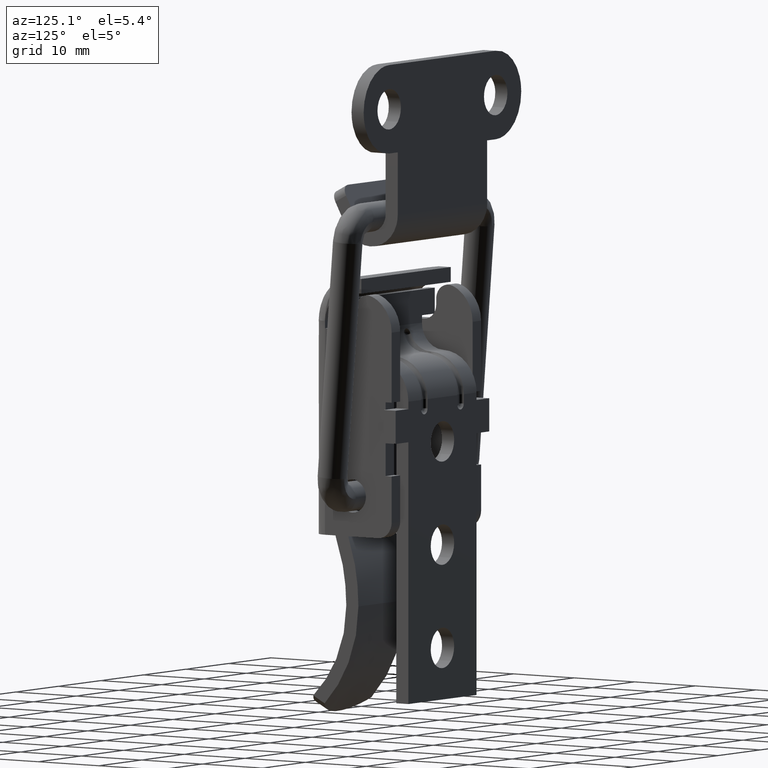
[diagram: clean part render]
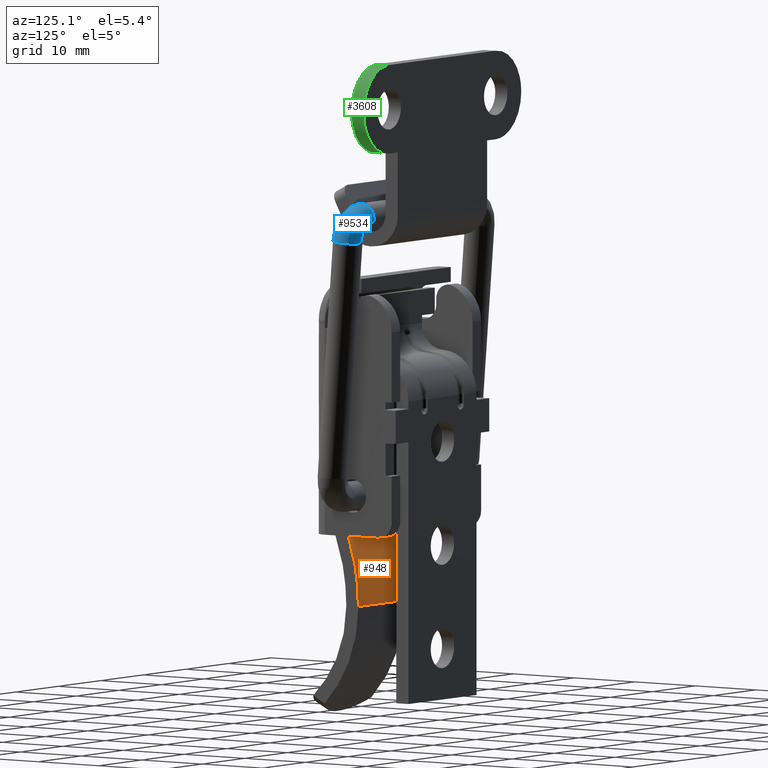
[diagram: same view with three faces highlighted in distinct colors, each labeled with its STEP entity id]
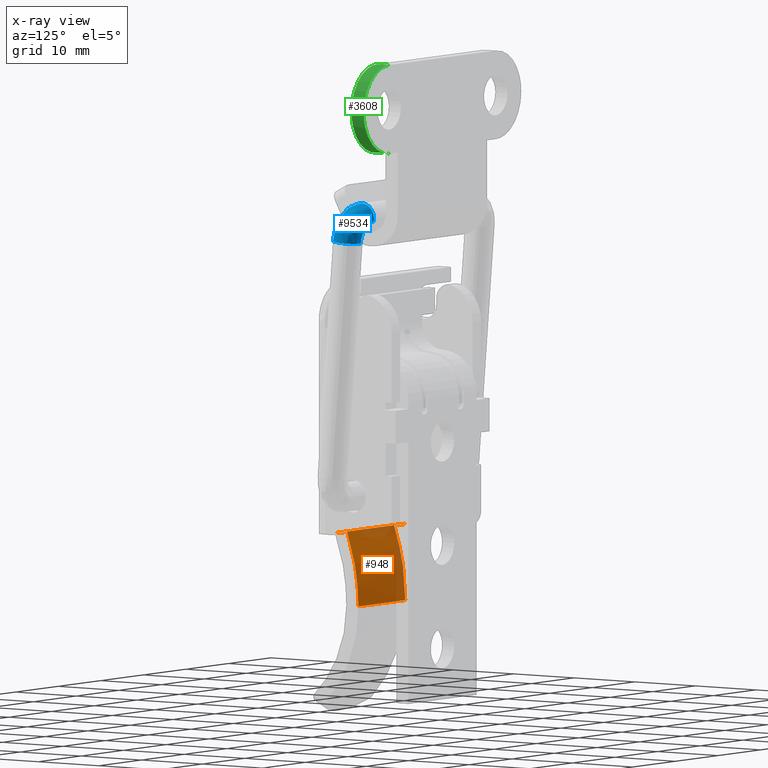
[diagram: x-ray of the same camera — body ghosted, the three highlighted faces saturated]
A machine part, auxiliary view with three faces highlighted in distinct colors.
The next image is the same camera in x-ray (body ghosted, the three faces saturated) — at least one of them is partly hidden behind the body in this view.
Their STEP definitions:

[orange] entity #948 — the highlighted face is a freeform B-spline surface patch.
#536=CARTESIAN_POINT('',(5.500000000000000,-4.346606338755945,-5.500000000000000));
#537=VERTEX_POINT('',#536);
#574=CARTESIAN_POINT('',(5.500000000000000,-2.499999999999915,-15.500000000000000));
#575=VERTEX_POINT('',#574);
#587=CARTESIAN_POINT('',(5.500000000000000,-4.346606338755945,-5.500000000000000));
#588=CARTESIAN_POINT('',(5.499999999999994,-3.756784696817081,-7.042107048097098));
#589=CARTESIAN_POINT('',(5.500000000000017,-2.822113269814003,-10.333919449175839));
#590=CARTESIAN_POINT('',(5.499999999999986,-2.499772219202408,-13.742425566897150));
#591=CARTESIAN_POINT('',(5.500000000000000,-2.499999999999915,-15.500000000000000));
#592=B_SPLINE_CURVE_WITH_KNOTS('',3,(#587,#588,#589,#590,#591),.UNSPECIFIED.,.F.,.U.,(4,1,4),(2.137188E-009,4.953135184121796,10.225816070062340),.UNSPECIFIED.);
#593=EDGE_CURVE('',#537,#575,#592,.T.);
#615=CARTESIAN_POINT('',(-5.500000000000000,-4.346606338755935,-5.500000000000000));
#616=VERTEX_POINT('',#615);
#622=CARTESIAN_POINT('',(-5.500000000000000,-2.499999999999915,-15.500000000000000));
#623=VERTEX_POINT('',#622);
#624=CARTESIAN_POINT('',(-5.500000000000000,-2.499999999999915,-15.500000000000000));
#625=CARTESIAN_POINT('',(-5.500000000000003,-2.499975960879610,-14.434810754267250));
#626=CARTESIAN_POINT('',(-5.500000000000002,-2.624742881646974,-12.251179675901909));
#627=CARTESIAN_POINT('',(-5.499999999999981,-3.216052975655884,-8.888043038366162));
#628=CARTESIAN_POINT('',(-5.500000000000021,-3.909078111999518,-6.644165944255310));
#629=CARTESIAN_POINT('',(-5.500000000000000,-4.346606338755935,-5.500000000000000));
#630=B_SPLINE_CURVE_WITH_KNOTS('',3,(#624,#625,#626,#627,#628,#629),.UNSPECIFIED.,.F.,.U.,(4,1,1,4),(2.137478E-009,3.195569477111270,6.550912951163868,10.225816070062340),.UNSPECIFIED.);
#631=EDGE_CURVE('',#623,#616,#630,.T.);
#766=CARTESIAN_POINT('',(-8.0,-4.346606338755935,-5.500000000000000));
#767=VERTEX_POINT('',#766);
#768=CARTESIAN_POINT('',(-8.0,-4.366666666666665,-5.447692360015530));
#769=VERTEX_POINT('',#768);
#770=CARTESIAN_POINT('',(-8.0,-4.346606338755935,-5.500000000000000));
#771=CARTESIAN_POINT('',(-8.0,-4.366666666666665,-5.447692360015530));
#772=QUASI_UNIFORM_CURVE('',1,(#770,#771),.UNSPECIFIED.,.F.,.U.);
#773=EDGE_CURVE('',#767,#769,#772,.T.);
#804=CARTESIAN_POINT('',(7.999999999999900,-4.346606338755935,-5.500000000000000));
#805=VERTEX_POINT('',#804);
#813=CARTESIAN_POINT('',(7.999999999999900,-4.366666666666665,-5.447692360015530));
#814=VERTEX_POINT('',#813);
#815=CARTESIAN_POINT('',(7.999999999999900,-4.346606338755935,-5.500000000000000));
#816=CARTESIAN_POINT('',(7.999999999999900,-4.366666666666665,-5.447692360015530));
#817=QUASI_UNIFORM_CURVE('',1,(#815,#816),.UNSPECIFIED.,.F.,.U.);
#818=EDGE_CURVE('',#805,#814,#817,.T.);
#904=CARTESIAN_POINT('',(7.999999999999900,-4.366666666666665,-5.447692360015530));
#905=CARTESIAN_POINT('',(-8.0,-4.366666666666665,-5.447692360015530));
#906=QUASI_UNIFORM_CURVE('',1,(#904,#905),.UNSPECIFIED.,.F.,.U.);
#907=EDGE_CURVE('',#814,#769,#906,.T.);
#912=CARTESIAN_POINT('',(8.399999999999899,-2.504627173452964,-16.009018960974146));
#913=CARTESIAN_POINT('',(-8.410000000000002,-2.504627173452964,-16.009018960974146));
#914=CARTESIAN_POINT('',(8.399999999999899,-2.400475146343137,-10.280794566345985));
#915=CARTESIAN_POINT('',(-8.409999999999998,-2.400475146343137,-10.280794566345985));
#916=CARTESIAN_POINT('',(8.399999999999899,-4.554637481262168,-4.972029456192746));
#917=CARTESIAN_POINT('',(-8.410000000000000,-4.554637481262168,-4.972029456192746));
#925=(BOUNDED_SURFACE()B_SPLINE_SURFACE(1,2,((#912,#914,#916),(#913,#915,#917)),.UNSPECIFIED.,.F.,.F.,.U.)B_SPLINE_SURFACE_WITH_KNOTS((2,2),(3,3),(0.0,16.809999999999899),(0.0,11.340841047530841),.UNSPECIFIED.)GEOMETRIC_REPRESENTATION_ITEM()RATIONAL_B_SPLINE_SURFACE(((0.998920453607400,0.976221244705207,0.993980152992177),(0.998920453607400,0.976221244705207,0.993980152992177)))REPRESENTATION_ITEM('')SURFACE());
#926=CARTESIAN_POINT('',(7.999999999999900,-4.346606338755935,-5.500000000000000));
#927=CARTESIAN_POINT('',(5.500000000000000,-4.346606338755945,-5.500000000000000));
#928=QUASI_UNIFORM_CURVE('',1,(#926,#927),.UNSPECIFIED.,.F.,.U.);
#929=EDGE_CURVE('',#805,#537,#928,.T.);
#930=ORIENTED_EDGE('',*,*,#929,.T.);
#931=ORIENTED_EDGE('',*,*,#593,.T.);
#932=CARTESIAN_POINT('',(5.500000000000000,-2.499999999999915,-15.500000000000000));
#933=CARTESIAN_POINT('',(-5.500000000000000,-2.499999999999915,-15.500000000000000));
#934=QUASI_UNIFORM_CURVE('',1,(#932,#933),.UNSPECIFIED.,.F.,.U.);
#935=EDGE_CURVE('',#575,#623,#934,.T.);
#936=ORIENTED_EDGE('',*,*,#935,.T.);
#937=ORIENTED_EDGE('',*,*,#631,.T.);
#938=CARTESIAN_POINT('',(-5.500000000000000,-4.346606338755935,-5.500000000000000));
#939=CARTESIAN_POINT('',(-8.0,-4.346606338755935,-5.500000000000000));
#940=QUASI_UNIFORM_CURVE('',1,(#938,#939),.UNSPECIFIED.,.F.,.U.);
#941=EDGE_CURVE('',#616,#767,#940,.T.);
#942=ORIENTED_EDGE('',*,*,#941,.T.);
#943=ORIENTED_EDGE('',*,*,#773,.T.);
#944=ORIENTED_EDGE('',*,*,#907,.F.);
#945=ORIENTED_EDGE('',*,*,#818,.F.);
#946=EDGE_LOOP('',(#930,#931,#936,#937,#942,#943,#944,#945));
#947=FACE_OUTER_BOUND('',#946,.T.);
#948=ADVANCED_FACE('',(#947),#925,.T.);

[blue] entity #9534 — the highlighted face is a freeform B-spline surface patch.
#8687=CARTESIAN_POINT('',(12.500000000311671,-2.0,38.118237105345969));
#8688=VERTEX_POINT('',#8687);
#8696=CARTESIAN_POINT('',(12.499999999998719,-9.284338E-017,40.118237105091850));
#8697=VERTEX_POINT('',#8696);
#8698=CARTESIAN_POINT('',(12.499999999998719,-9.284338E-017,40.118237105091850));
#8699=CARTESIAN_POINT('',(12.499999999998730,-0.163619527955219,40.118255672290132));
#8700=CARTESIAN_POINT('',(12.500000000005960,-0.539988145565445,40.071883038153530));
#8701=CARTESIAN_POINT('',(12.500000000037680,-1.012133107447806,39.869504832381999));
#8702=CARTESIAN_POINT('',(12.500000000083521,-1.387952920475096,39.576047858994933));
#8703=CARTESIAN_POINT('',(12.500000000138080,-1.688747822335934,39.227525214604789));
#8704=CARTESIAN_POINT('',(12.500000000214470,-1.934099733676171,38.739955183495262));
#8705=CARTESIAN_POINT('',(12.500000000278330,-2.000125464563861,38.330961786095067));
#8706=CARTESIAN_POINT('',(12.500000000311671,-2.0,38.118237105345969));
#8707=B_SPLINE_CURVE_WITH_KNOTS('',3,(#8698,#8699,#8700,#8701,#8702,#8703,#8704,#8705,#8706),.UNSPECIFIED.,.F.,.U.,(4,1,1,1,1,1,4),(0.000000080942778,0.490885984309863,1.129050752807840,1.521755501513646,1.914436206712832,2.503524089595596,3.141671488589724),.UNSPECIFIED.);
#8708=EDGE_CURVE('',#8697,#8688,#8707,.T.);
#8710=CARTESIAN_POINT('',(12.500000000094889,1.986623277558564,37.887308646337907));
#8711=VERTEX_POINT('',#8710);
#8712=CARTESIAN_POINT('',(12.500000000094889,1.986623277558564,37.887308646337907));
#8713=CARTESIAN_POINT('',(12.500000000078810,2.013132437964530,38.114166440935790));
#8714=CARTESIAN_POINT('',(12.500000000055200,1.993115185287151,38.470108282693452));
#8715=CARTESIAN_POINT('',(12.500000000027800,1.838076683342367,38.939169854756493));
#8716=CARTESIAN_POINT('',(12.500000000008569,1.628639985396933,39.307796973621322));
#8717=CARTESIAN_POINT('',(12.499999999992481,1.282468822075968,39.686501995109573));
#8718=CARTESIAN_POINT('',(12.499999999984800,0.737692798708373,40.023100710550892));
#8719=CARTESIAN_POINT('',(12.499999999991410,0.263549913081528,40.118514935326679));
#8720=CARTESIAN_POINT('',(12.499999999998719,-9.284338E-017,40.118237105091850));
#8721=B_SPLINE_CURVE_WITH_KNOTS('',3,(#8712,#8713,#8714,#8715,#8716,#8717,#8718,#8719,#8720),.UNSPECIFIED.,.F.,.U.,(4,1,1,1,1,1,4),(0.000000038434457,0.685160763930145,1.054113044976634,1.475750169876393,1.950086034219020,2.582559039412395,3.373134908436910),.UNSPECIFIED.);
#8722=EDGE_CURVE('',#8711,#8697,#8721,.T.);
#8857=CARTESIAN_POINT('',(17.500000000000000,-1.942300E-028,35.118237105093101));
#8858=VERTEX_POINT('',#8857);
#8859=CARTESIAN_POINT('',(17.120705321740040,-1.171884917593300,35.118236180189093));
#8860=VERTEX_POINT('',#8859);
#8861=CARTESIAN_POINT('',(17.500000000000000,-1.942300E-028,35.118237105093101));
#8862=CARTESIAN_POINT('',(17.500021963496959,-0.156509315208222,35.118237011785922));
#8863=CARTESIAN_POINT('',(17.450800509534290,-0.573877410649099,35.118236733577270));
#8864=CARTESIAN_POINT('',(17.273829669203970,-0.960637630817571,35.118236397448207));
#8865=CARTESIAN_POINT('',(17.120705321740040,-1.171884917593300,35.118236180189093));
#8866=B_SPLINE_CURVE_WITH_KNOTS('',3,(#8861,#8862,#8863,#8864,#8865),.UNSPECIFIED.,.F.,.U.,(4,1,4),(0.000000021799349,0.469539566915238,1.252105149662528),.UNSPECIFIED.);
#8867=EDGE_CURVE('',#8858,#8860,#8866,.T.);
#8897=CARTESIAN_POINT('',(16.851180359195229,1.474554724967855,35.118237105177712));
#8898=VERTEX_POINT('',#8897);
#8904=CARTESIAN_POINT('',(16.851180359195229,1.474554724967855,35.118237105177712));
#8905=CARTESIAN_POINT('',(17.016837456681561,1.322956980162625,35.118237104990392));
#8906=CARTESIAN_POINT('',(17.242347596948470,1.032357326203498,35.118237104797352));
#8907=CARTESIAN_POINT('',(17.452871388927718,0.518107547798297,35.118237104796442));
#8908=CARTESIAN_POINT('',(17.500074061058729,0.189994441275751,35.118237104952861));
#8909=CARTESIAN_POINT('',(17.500000000000000,-1.942300E-028,35.118237105093101));
#8910=B_SPLINE_CURVE_WITH_KNOTS('',3,(#8904,#8905,#8906,#8907,#8908,#8909),.UNSPECIFIED.,.F.,.U.,(4,1,1,4),(0.000000028464442,0.673614468307223,1.088127557305217,1.658109222579091),.UNSPECIFIED.);
#8911=EDGE_CURVE('',#8898,#8858,#8910,.T.);
#8942=CARTESIAN_POINT('',(15.499999999998099,-2.0,35.118234720085141));
#8943=VERTEX_POINT('',#8942);
#8944=CARTESIAN_POINT('',(17.120705321740040,-1.171884917593300,35.118236180189093));
#8945=CARTESIAN_POINT('',(16.993927518134669,-1.347416514302190,35.118235999937319));
#8946=CARTESIAN_POINT('',(16.753358902989952,-1.586257975150073,35.118235714089572));
#8947=CARTESIAN_POINT('',(16.335980940963530,-1.831573871938577,35.118235318959726));
#8948=CARTESIAN_POINT('',(15.942847411959111,-1.967170654665177,35.118235003705408));
#8949=CARTESIAN_POINT('',(15.647619413729499,-2.000024867019609,35.118234808087827));
#8950=CARTESIAN_POINT('',(15.499999999998099,-2.0,35.118234720085141));
#8951=B_SPLINE_CURVE_WITH_KNOTS('',3,(#8944,#8945,#8946,#8947,#8948,#8949,#8950),.UNSPECIFIED.,.F.,.U.,(4,1,1,1,4),(0.000000050844252,0.649531440701733,1.003804955805120,1.446667566734450,1.889524623268047),.UNSPECIFIED.);
#8952=EDGE_CURVE('',#8860,#8943,#8951,.T.);
#8968=CARTESIAN_POINT('',(15.269071538442279,1.986623277232646,35.118237107656363));
#8969=VERTEX_POINT('',#8968);
#8982=CARTESIAN_POINT('',(15.269071538442279,1.986623277232646,35.118237107656363));
#8983=CARTESIAN_POINT('',(15.428774283460120,2.005226156688181,35.118237107354339));
#8984=CARTESIAN_POINT('',(15.734668196661531,2.003665775220961,35.118237106803313));
#8985=CARTESIAN_POINT('',(16.294173660870271,1.871198386791942,35.118237105890991));
#8986=CARTESIAN_POINT('',(16.653791667544500,1.655871074536661,35.118237105400297));
#8987=CARTESIAN_POINT('',(16.851180359195229,1.474554724967855,35.118237105177712));
#8988=B_SPLINE_CURVE_WITH_KNOTS('',3,(#8982,#8983,#8984,#8985,#8986,#8987),.UNSPECIFIED.,.F.,.U.,(4,1,1,4),(0.000000018869367,0.482351048068467,0.911107029863148,1.715025770897611),.UNSPECIFIED.);
#8989=EDGE_CURVE('',#8969,#8898,#8988,.T.);
#9467=CARTESIAN_POINT('',(15.231424395150242,1.983013403337755,34.928353627804682));
#9468=CARTESIAN_POINT('',(15.449763529737227,1.983013403337752,38.069105246361147));
#9469=CARTESIAN_POINT('',(12.309093878466195,1.983013403337754,37.849590215571993));
#9470=CARTESIAN_POINT('',(15.246956598849327,1.984823248754010,34.927273858269942));
#9471=CARTESIAN_POINT('',(15.466537315637854,1.984823248754009,38.085885313618611));
#9472=CARTESIAN_POINT('',(12.308008293680336,1.984823248754009,37.865122013911858));
#9473=CARTESIAN_POINT('',(15.377204403289282,1.999999999999998,34.918219276323597));
#9474=CARTESIAN_POINT('',(15.607196608293906,1.999999999999998,38.226597279607674));
#9475=CARTESIAN_POINT('',(12.298904947005958,1.999999999999999,37.995366419146691));
#9476=CARTESIAN_POINT('',(15.492777017106642,2.000000000000000,34.910184885977749));
#9477=CARTESIAN_POINT('',(15.732007634321262,1.999999999999999,38.351455044194687));
#9478=CARTESIAN_POINT('',(12.290827286317787,2.000000000000000,38.110936016751829));
#9479=CARTESIAN_POINT('',(17.487961695177734,2.000000000000000,34.771483406568350));
#9480=CARTESIAN_POINT('',(17.886679390535438,2.000000000000000,40.506933670263237));
#9481=CARTESIAN_POINT('',(12.151378810529652,2.000000000000000,40.106068624525136));
#9482=CARTESIAN_POINT('',(17.487961695177724,4.898425E-016,34.771483406568343));
#9483=CARTESIAN_POINT('',(17.886679390535441,4.898425E-016,40.506933670263244));
#9484=CARTESIAN_POINT('',(12.151378810529655,4.898425E-016,40.106068624525143));
#9485=CARTESIAN_POINT('',(17.487961695177734,-1.999999999999998,34.771483406568350));
#9486=CARTESIAN_POINT('',(17.886679390535438,-1.999999999999998,40.506933670263237));
#9487=CARTESIAN_POINT('',(12.151378810529652,-1.999999999999999,40.106068624525136));
#9488=CARTESIAN_POINT('',(15.478082355072031,-1.999999999999999,34.911206431194103));
#9489=CARTESIAN_POINT('',(15.716138339813799,-2.000000000000000,38.335579807039451));
#9490=CARTESIAN_POINT('',(12.291854333209971,-1.999999999999999,38.096241738218268));
#9491=CARTESIAN_POINT('',(15.463477078630115,-1.999999999999999,34.912221762492472));
#9492=CARTESIAN_POINT('',(15.700365576025575,-2.000000000000000,38.319801136751735));
#9493=CARTESIAN_POINT('',(12.292875132718244,-2.000000000000000,38.081636842944626));
#9501=(BOUNDED_SURFACE()B_SPLINE_SURFACE(2,2,((#9467,#9470,#9473,#9476,#9479,#9482,#9485,#9488,#9491),(#9468,#9471,#9474,#9477,#9480,#9483,#9486,#9489,#9492),(#9469,#9472,#9475,#9478,#9481,#9484,#9487,#9490,#9493)),.UNSPECIFIED.,.F.,.F.,.U.)B_SPLINE_SURFACE_WITH_KNOTS((3,3),(3,1,2,2,1,3),(0.0,9.111852950934482),(0.0,0.034859568048352,0.299955995151237,3.613664494135995,6.927372993120752,6.961993444974987),.UNSPECIFIED.)GEOMETRIC_REPRESENTATION_ITEM()RATIONAL_B_SPLINE_SURFACE(((0.877310256985510,0.879696117552699,0.900225723075366,0.921825415527301,0.651829002389462,0.921825415527301,0.651829002389462,0.924646242351603,0.927467069175906),(0.574115937148387,0.575677255467112,0.589111925380161,0.603246865186712,0.426559949103051,0.603246865186712,0.426559949103051,0.605092827459320,0.606938789731929),(0.872450655150012,0.874823299945130,0.895239187763158,0.916719235079009,0.648218387568512,0.916719235079009,0.648218387568512,0.919524436763740,0.922329638448470)))REPRESENTATION_ITEM('')SURFACE());
#9502=ORIENTED_EDGE('',*,*,#8722,.T.);
#9503=ORIENTED_EDGE('',*,*,#8708,.T.);
#9504=CARTESIAN_POINT('',(15.499999999998099,-2.0,35.118234720085141));
#9505=CARTESIAN_POINT('',(15.500188176638900,-1.999999999999997,35.437325923459937));
#9506=CARTESIAN_POINT('',(15.403132165300280,-2.000000000000002,36.038530445489542));
#9507=CARTESIAN_POINT('',(15.028870263294911,-1.999999999999999,36.793697995410319));
#9508=CARTESIAN_POINT('',(14.581761758215849,-1.999999999999998,37.305444749062048));
#9509=CARTESIAN_POINT('',(14.025977039831590,-2.000000000000001,37.733888358517603));
#9510=CARTESIAN_POINT('',(13.346764120904400,-1.999999999999991,38.039929638919197));
#9511=CARTESIAN_POINT('',(12.769978340733820,-2.0,38.118302273187531));
#9512=CARTESIAN_POINT('',(12.500000000311671,-2.0,38.118237105345969));
#9513=B_SPLINE_CURVE_WITH_KNOTS('',3,(#9504,#9505,#9506,#9507,#9508,#9509,#9510,#9511,#9512),.UNSPECIFIED.,.F.,.U.,(4,1,1,1,1,1,4),(0.000000111937291,0.957205737440873,1.803990103948158,2.503450509106572,2.982061618123548,3.902476781561192,4.712419893050834),.UNSPECIFIED.);
#9514=EDGE_CURVE('',#8943,#8688,#9513,.T.);
#9515=ORIENTED_EDGE('',*,*,#9514,.F.);
#9516=ORIENTED_EDGE('',*,*,#8952,.F.);
#9517=ORIENTED_EDGE('',*,*,#8867,.F.);
#9518=ORIENTED_EDGE('',*,*,#8911,.F.);
#9519=ORIENTED_EDGE('',*,*,#8989,.F.);
#9520=CARTESIAN_POINT('',(15.269071538442279,1.986623277232646,35.118237107656363));
#9521=CARTESIAN_POINT('',(15.269100796495710,1.986623277261639,35.356099586582673));
#9522=CARTESIAN_POINT('',(15.200183701618910,1.986623277326246,35.888516411773253));
#9523=CARTESIAN_POINT('',(14.884052813828079,1.986623277411844,36.601638909581467));
#9524=CARTESIAN_POINT('',(14.343297488912141,1.986623277486939,37.236351275537118));
#9525=CARTESIAN_POINT('',(13.708681706368081,1.986623277534614,37.649278538439660));
#9526=CARTESIAN_POINT('',(13.055022628296360,1.986623277556553,37.851757799549887));
#9527=CARTESIAN_POINT('',(12.669905846833570,1.986623277559287,37.887320101137227));
#9528=CARTESIAN_POINT('',(12.500000000094889,1.986623277558564,37.887308646337907));
#9529=B_SPLINE_CURVE_WITH_KNOTS('',3,(#9520,#9521,#9522,#9523,#9524,#9525,#9526,#9527,#9528),.UNSPECIFIED.,.F.,.U.,(4,1,1,1,1,1,4),(0.000000110424674,0.713614309743710,1.597155472693479,2.310747328363628,3.194291787157125,3.839951185203775,4.349674693733366),.UNSPECIFIED.);
#9530=EDGE_CURVE('',#8969,#8711,#9529,.T.);
#9531=ORIENTED_EDGE('',*,*,#9530,.T.);
#9532=EDGE_LOOP('',(#9502,#9503,#9515,#9516,#9517,#9518,#9519,#9531));
#9533=FACE_OUTER_BOUND('',#9532,.T.);
#9534=ADVANCED_FACE('',(#9533),#9501,.T.);

[green] entity #3608 — the highlighted face is a freeform B-spline surface patch.
#3311=CARTESIAN_POINT('',(12.500000000000000,7.500000000000000,57.0));
#3312=VERTEX_POINT('',#3311);
#3318=CARTESIAN_POINT('',(18.499999999999790,7.500000000000000,51.000001602366602));
#3319=VERTEX_POINT('',#3318);
#3320=CARTESIAN_POINT('',(18.499999999999790,7.500000000000000,51.000001602366602));
#3321=CARTESIAN_POINT('',(18.500036934697171,7.499999999999999,51.368152662435953));
#3322=CARTESIAN_POINT('',(18.432024734057901,7.499999999999987,52.104450157094959));
#3323=CARTESIAN_POINT('',(18.136394443489610,7.500000000000020,53.147887374118042));
#3324=CARTESIAN_POINT('',(17.704158030223471,7.499999999999963,54.033417454891058));
#3325=CARTESIAN_POINT('',(17.212698967243369,7.500000000000086,54.740348441115202));
#3326=CARTESIAN_POINT('',(16.535725135305562,7.499999999999877,55.487461181712959));
#3327=CARTESIAN_POINT('',(15.689492197274300,7.500000000000076,56.131299974365703));
#3328=CARTESIAN_POINT('',(14.646348454670150,7.499999999999947,56.632415361722579));
#3329=CARTESIAN_POINT('',(13.628986484619331,7.500000000000156,56.927453099607810));
#3330=CARTESIAN_POINT('',(12.892697814563670,7.499999999999607,57.000051915577913));
#3331=CARTESIAN_POINT('',(12.500000000000000,7.500000000000000,57.0));
#3332=B_SPLINE_CURVE_WITH_KNOTS('',3,(#3320,#3321,#3322,#3323,#3324,#3325,#3326,#3327,#3328,#3329,#3330,#3331),.UNSPECIFIED.,.F.,.U.,(4,1,1,1,1,1,1,1,1,4),(0.000000075080411,1.104453470854779,2.208945407004372,3.239793227924583,4.049751936530592,4.786027764648478,6.258667400811731,7.215892541371181,8.246749294322708,9.424836194127002),.UNSPECIFIED.);
#3333=EDGE_CURVE('',#3319,#3312,#3332,.T.);
#3335=CARTESIAN_POINT('',(12.500000000000000,7.500000000000000,45.0));
#3336=VERTEX_POINT('',#3335);
#3337=CARTESIAN_POINT('',(12.500000000000000,7.500000000000000,45.0));
#3338=CARTESIAN_POINT('',(13.015438564627949,7.499999999999995,44.999843696636120));
#3339=CARTESIAN_POINT('',(13.800732405617390,7.500000000000003,45.101873648321629));
#3340=CARTESIAN_POINT('',(14.942974634880780,7.500000000000013,45.486974258736417));
#3341=CARTESIAN_POINT('',(15.810632771567271,7.499999999999944,45.957636682096663));
#3342=CARTESIAN_POINT('',(16.656036419453049,7.500000000000106,46.634290586634052));
#3343=CARTESIAN_POINT('',(17.445286675461659,7.499999999999904,47.515687017739502));
#3344=CARTESIAN_POINT('',(18.060627716015631,7.500000000000006,48.617647525163157));
#3345=CARTESIAN_POINT('',(18.425023172915580,7.500000000000051,49.846476325625140));
#3346=CARTESIAN_POINT('',(18.500049615048059,7.499999999999929,50.607304993278817));
#3347=CARTESIAN_POINT('',(18.499999999999790,7.500000000000000,51.000001602366602));
#3348=B_SPLINE_CURVE_WITH_KNOTS('',3,(#3337,#3338,#3339,#3340,#3341,#3342,#3343,#3344,#3345,#3346,#3347),.UNSPECIFIED.,.F.,.U.,(4,1,1,1,1,1,1,1,4),(0.000000074480074,1.546256896377985,2.356209892426923,3.607948768081110,4.491555098316961,5.595974636894791,7.142260717741125,8.246750874775003,9.424838000379120),.UNSPECIFIED.);
#3349=EDGE_CURVE('',#3336,#3319,#3348,.T.);
#3422=CARTESIAN_POINT('',(12.500000000000000,5.500000000000000,57.0));
#3423=VERTEX_POINT('',#3422);
#3469=CARTESIAN_POINT('',(12.500000000000000,5.500000000000000,45.0));
#3470=VERTEX_POINT('',#3469);
#3476=CARTESIAN_POINT('',(18.499999999999790,5.500000000000000,51.000001602366602));
#3477=VERTEX_POINT('',#3476);
#3478=CARTESIAN_POINT('',(12.500000000000000,5.500000000000000,45.0));
#3479=CARTESIAN_POINT('',(12.819065645791699,5.499999999999997,44.999990323635807));
#3480=CARTESIAN_POINT('',(13.555382389938639,5.500000000000014,45.058824009925722));
#3481=CARTESIAN_POINT('',(14.603620875741910,5.499999999999974,45.341974277363342));
#3482=CARTESIAN_POINT('',(15.533413004652020,5.500000000000036,45.795850713035463));
#3483=CARTESIAN_POINT('',(16.280752244720102,5.499999999999993,46.315371338834090));
#3484=CARTESIAN_POINT('',(17.020077200389998,5.499999999999977,47.002061182149284));
#3485=CARTESIAN_POINT('',(17.637873750481681,5.500000000000019,47.835085017238939));
#3486=CARTESIAN_POINT('',(18.123617473221891,5.499999999999982,48.830377435591473));
#3487=CARTESIAN_POINT('',(18.425035471336340,5.500000000000037,49.846469361983907));
#3488=CARTESIAN_POINT('',(18.500049581355078,5.499999999999953,50.607305021890362));
#3489=CARTESIAN_POINT('',(18.499999999999790,5.500000000000000,51.000001602366602));
#3490=B_SPLINE_CURVE_WITH_KNOTS('',3,(#3478,#3479,#3480,#3481,#3482,#3483,#3484,#3485,#3486,#3487,#3488,#3489),.UNSPECIFIED.,.F.,.U.,(4,1,1,1,1,1,1,1,1,4),(0.000000074480074,0.957206968427565,2.208945829888599,3.239793847992169,4.049752712923851,4.933282997083890,6.258668600530724,7.142260717741125,8.246750874775003,9.424838000379120),.UNSPECIFIED.);
#3491=EDGE_CURVE('',#3470,#3477,#3490,.T.);
#3493=CARTESIAN_POINT('',(18.499999999999790,5.500000000000000,51.000001602366602));
#3494=CARTESIAN_POINT('',(18.500036938074601,5.499999999999997,51.368152658697930));
#3495=CARTESIAN_POINT('',(18.432024715378549,5.500000000000000,52.104450177760462));
#3496=CARTESIAN_POINT('',(18.136394489177761,5.500000000000008,53.147887323616487));
#3497=CARTESIAN_POINT('',(17.704157942333630,5.499999999999991,54.033417552073999));
#3498=CARTESIAN_POINT('',(17.212699455200429,5.500000000000025,54.740349000924823));
#3499=CARTESIAN_POINT('',(16.535722999615849,5.499999999999953,55.487456812824369));
#3500=CARTESIAN_POINT('',(15.689499001278399,5.500000000000017,56.131314866205770));
#3501=CARTESIAN_POINT('',(14.757305958316209,5.500000000000022,56.579068091025519));
#3502=CARTESIAN_POINT('',(13.751657733807420,5.499999999999884,56.904526673074770));
#3503=CARTESIAN_POINT('',(13.015433486032601,5.500000000000128,57.000152313044381));
#3504=CARTESIAN_POINT('',(12.500000000000000,5.500000000000000,57.0));
#3505=B_SPLINE_CURVE_WITH_KNOTS('',3,(#3493,#3494,#3495,#3496,#3497,#3498,#3499,#3500,#3501,#3502,#3503,#3504),.UNSPECIFIED.,.F.,.U.,(4,1,1,1,1,1,1,1,1,4),(0.000000075080411,1.104453470854779,2.208945407004372,3.239793227924583,4.049751936530592,4.786027764648478,6.258667400811731,7.215892541371181,7.878586934123142,9.424836194127002),.UNSPECIFIED.);
#3506=EDGE_CURVE('',#3477,#3423,#3505,.T.);
#3569=CARTESIAN_POINT('',(12.500000000000000,5.500000000000000,45.0));
#3570=CARTESIAN_POINT('',(12.500000000000000,7.500000000000000,45.0));
#3571=QUASI_UNIFORM_CURVE('',1,(#3569,#3570),.UNSPECIFIED.,.F.,.U.);
#3572=EDGE_CURVE('',#3470,#3336,#3571,.T.);
#3578=CARTESIAN_POINT('',(12.342938310152750,5.450000000000000,45.002056050146663));
#3579=CARTESIAN_POINT('',(12.342938310152750,7.551250000000000,45.002056050146663));
#3580=CARTESIAN_POINT('',(18.663452437057391,5.450000000000001,44.836547562942577));
#3581=CARTESIAN_POINT('',(18.663452437057391,7.551250000000000,44.836547562942577));
#3582=CARTESIAN_POINT('',(18.497943949853340,5.450000000000000,51.157061689847232));
#3583=CARTESIAN_POINT('',(18.497943949853340,7.551250000000000,51.157061689847232));
#3584=CARTESIAN_POINT('',(18.332435462649290,5.450000000000001,57.477575816751873));
#3585=CARTESIAN_POINT('',(18.332435462649290,7.551250000000000,57.477575816751873));
#3586=CARTESIAN_POINT('',(12.029245425632940,5.450000000000000,56.981504002398772));
#3587=CARTESIAN_POINT('',(12.029245425632940,7.551250000000000,56.981504002398772));
#3595=(BOUNDED_SURFACE()B_SPLINE_SURFACE(1,2,((#3578,#3580,#3582,#3584,#3586),(#3579,#3581,#3583,#3585,#3587)),.UNSPECIFIED.,.F.,.F.,.U.)B_SPLINE_SURFACE_WITH_KNOTS((2,2),(3,2,3),(0.0,2.101250000000000),(0.0,10.311213743204060,20.622427486408121),.UNSPECIFIED.)GEOMETRIC_REPRESENTATION_ITEM()RATIONAL_B_SPLINE_SURFACE(((1.0,0.688354575693754,1.0,0.688354575693754,1.0),(1.0,0.688354575693754,1.0,0.688354575693754,1.0)))REPRESENTATION_ITEM('')SURFACE());
#3596=ORIENTED_EDGE('',*,*,#3349,.T.);
#3597=ORIENTED_EDGE('',*,*,#3333,.T.);
#3598=CARTESIAN_POINT('',(12.500000000000000,5.500000000000000,57.0));
#3599=CARTESIAN_POINT('',(12.500000000000000,7.500000000000000,57.0));
#3600=QUASI_UNIFORM_CURVE('',1,(#3598,#3599),.UNSPECIFIED.,.F.,.U.);
#3601=EDGE_CURVE('',#3423,#3312,#3600,.T.);
#3602=ORIENTED_EDGE('',*,*,#3601,.F.);
#3603=ORIENTED_EDGE('',*,*,#3506,.F.);
#3604=ORIENTED_EDGE('',*,*,#3491,.F.);
#3605=ORIENTED_EDGE('',*,*,#3572,.T.);
#3606=EDGE_LOOP('',(#3596,#3597,#3602,#3603,#3604,#3605));
#3607=FACE_OUTER_BOUND('',#3606,.T.);
#3608=ADVANCED_FACE('',(#3607),#3595,.T.);